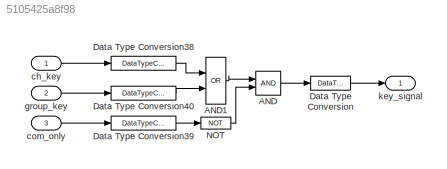
MODEL slx_5105425a8f98
KIND model
BLOCK [Logic] AND
  AllPortsSameDT = off
  OutDataTypeStr = boolean
  Ports = [2, 1]
BLOCK [Logic] AND1
  AllPortsSameDT = off
  Operator = OR
  OutDataTypeStr = boolean
  Ports = [2, 1]
BLOCK [DataTypeConversion] Data Type Conversion
  OutDataTypeStr = int16
  RndMeth = Floor
  SaturateOnIntegerOverflow = off
BLOCK [DataTypeConversion] Data Type Conversion38
  OutDataTypeStr = boolean
  RndMeth = Floor
  SaturateOnIntegerOverflow = off
BLOCK [DataTypeConversion] Data Type Conversion39
  OutDataTypeStr = boolean
  RndMeth = Floor
  SaturateOnIntegerOverflow = off
BLOCK [DataTypeConversion] Data Type Conversion40
  OutDataTypeStr = boolean
  RndMeth = Floor
  SaturateOnIntegerOverflow = off
BLOCK [Logic] NOT
  AllPortsSameDT = off
  Operator = NOT
  OutDataTypeStr = boolean
  Ports = [1, 1]
BLOCK [Inport] ch_key
  OutDataTypeStr = int16
BLOCK [Inport] com_only
  OutDataTypeStr = int16
  Port = 3
BLOCK [Inport] group_key
  OutDataTypeStr = int16
  Port = 2
BLOCK [Outport] key_signal
  OutDataTypeStr = int16
LINE AND1:1 -> AND:1
LINE AND:1 -> Data Type Conversion:1
LINE Data Type Conversion38:1 -> AND1:1
LINE Data Type Conversion39:1 -> NOT:1
LINE Data Type Conversion40:1 -> AND1:2
LINE Data Type Conversion:1 -> key_signal:1
LINE NOT:1 -> AND:2
LINE ch_key:1 -> Data Type Conversion38:1
LINE com_only:1 -> Data Type Conversion39:1
LINE group_key:1 -> Data Type Conversion40:1
